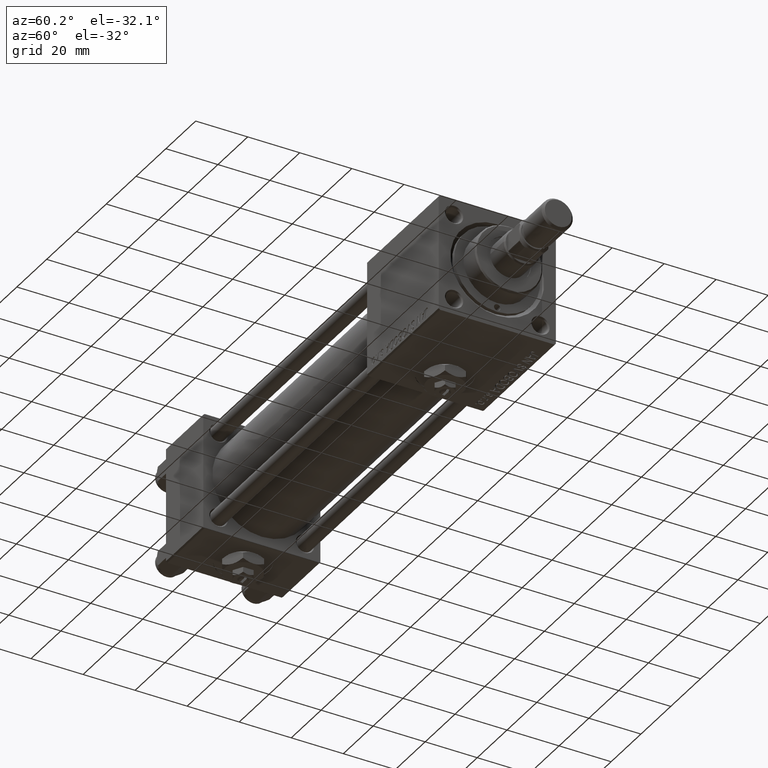
[diagram: clean part render]
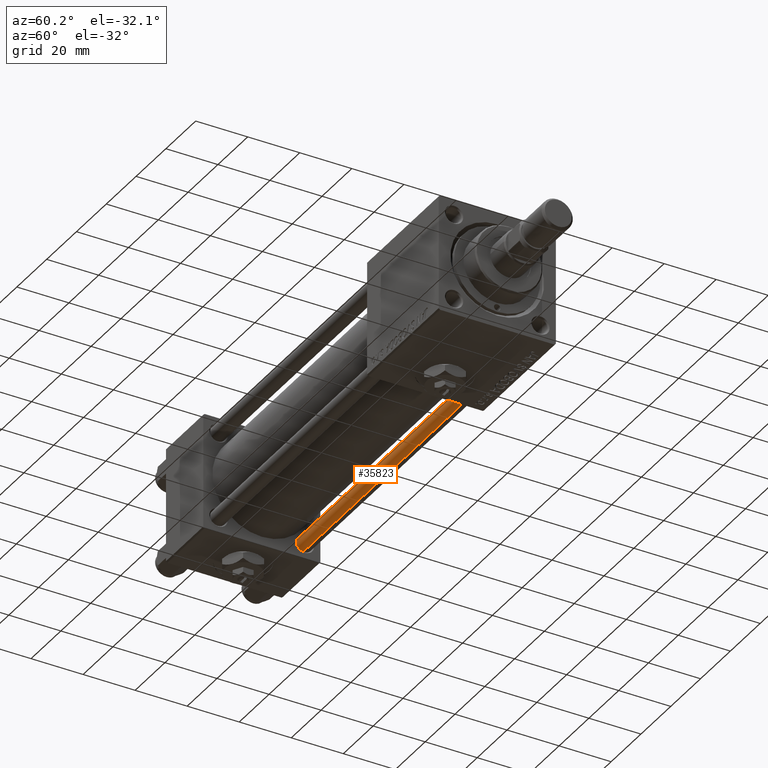
[diagram: same view with one face highlighted and labeled with its STEP entity id]
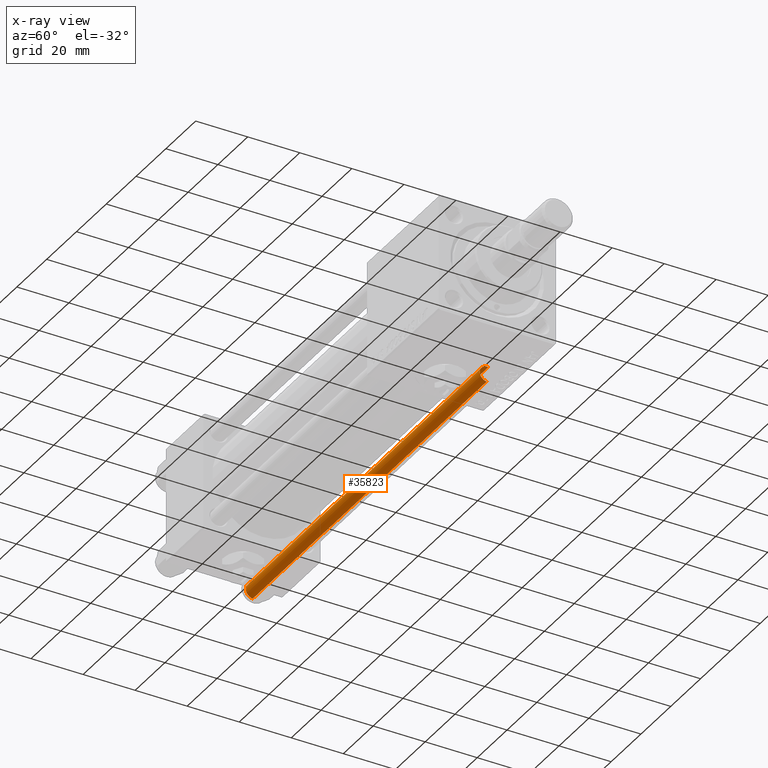
[diagram: x-ray of the same camera — body ghosted, the highlighted face saturated]
A machine part, auxiliary view. The second image highlights one B-rep face of the part: STEP entity #35823.
The next image is the same camera in x-ray: the body ghosted, the highlighted face saturated — about 0% of this face is hidden behind the body in this view.
In plain terms, the highlighted cylindrical surface (edge-blend (fillet) strip) has radius 3 mm, axis along (1, -0, 0).
Its self-contained STEP definition (entity closure, byte-faithful):
#1764 = LINE ( 'NONE', #18044, #7035 ) ;
#3276 = VECTOR ( 'NONE', #38239, 1000.000000000000000 ) ;
#3621 = AXIS2_PLACEMENT_3D ( 'NONE', #14482, #10732, #7513 ) ;
#5652 = CARTESIAN_POINT ( 'NONE',  ( 3.000000000000000444, 3.673940397442060361E-16, 158.0000000000000000 ) ) ;
#7035 = VECTOR ( 'NONE', #14580, 1000.000000000000000 ) ;
#7513 = DIRECTION ( 'NONE',  ( 1.000000000000000000, 0.000000000000000000, 0.000000000000000000 ) ) ;
#10732 = DIRECTION ( 'NONE',  ( -0.000000000000000000, -0.000000000000000000, 1.000000000000000000 ) ) ;
#12331 = FACE_OUTER_BOUND ( 'NONE', #41574, .T. ) ;
#14307 = EDGE_CURVE ( 'NONE', #28646, #35060, #43351, .T. ) ;
#14482 = CARTESIAN_POINT ( 'NONE',  ( 0.000000000000000000, 0.000000000000000000, 0.5000000000000281997 ) ) ;
#14580 = DIRECTION ( 'NONE',  ( -0.000000000000000000, -0.000000000000000000, -1.000000000000000000 ) ) ;
#14734 = LINE ( 'NONE', #5652, #3276 ) ;
#15705 = AXIS2_PLACEMENT_3D ( 'NONE', #32114, #24098, #48403 ) ;
#17132 = ORIENTED_EDGE ( 'NONE', *, *, #31811, .T. ) ;
#18044 = CARTESIAN_POINT ( 'NONE',  ( -3.000000000000000444, 0.000000000000000000, 158.0000000000000000 ) ) ;
#19207 = EDGE_CURVE ( 'NONE', #28646, #44332, #14734, .T. ) ;
#20460 = CARTESIAN_POINT ( 'NONE',  ( -3.000000000000000444, 0.000000000000000000, 0.5000000000000281997 ) ) ;
#22802 = ORIENTED_EDGE ( 'NONE', *, *, #19207, .F. ) ;
#23440 = DIRECTION ( 'NONE',  ( 0.000000000000000000, 0.000000000000000000, -1.000000000000000000 ) ) ;
#24098 = DIRECTION ( 'NONE',  ( -0.000000000000000000, -0.000000000000000000, -1.000000000000000000 ) ) ;
#28089 = CYLINDRICAL_SURFACE ( 'NONE', #15705, 3.000000000000000444 ) ;
#28646 = VERTEX_POINT ( 'NONE', #41109 ) ;
#31811 = EDGE_CURVE ( 'NONE', #49548, #44332, #49682, .T. ) ;
#32114 = CARTESIAN_POINT ( 'NONE',  ( 0.000000000000000000, 0.000000000000000000, 158.0000000000000000 ) ) ;
#32490 = CARTESIAN_POINT ( 'NONE',  ( 3.000000000000000444, 3.673940397442060361E-16, 0.5000000000000281997 ) ) ;
#32517 = EDGE_CURVE ( 'NONE', #35060, #49548, #1764, .T. ) ;
#35060 = VERTEX_POINT ( 'NONE', #49316 ) ;
#35823 = ADVANCED_FACE ( 'NONE', ( #12331 ), #28089, .T. ) ;
#36241 = DIRECTION ( 'NONE',  ( 1.000000000000000000, 0.000000000000000000, 0.000000000000000000 ) ) ;
#37360 = ORIENTED_EDGE ( 'NONE', *, *, #14307, .T. ) ;
#38239 = DIRECTION ( 'NONE',  ( -0.000000000000000000, -0.000000000000000000, -1.000000000000000000 ) ) ;
#39081 = AXIS2_PLACEMENT_3D ( 'NONE', #48523, #23440, #36241 ) ;
#41109 = CARTESIAN_POINT ( 'NONE',  ( 3.000000000000000444, 3.673940397442060361E-16, 157.5000000000000000 ) ) ;
#41574 = EDGE_LOOP ( 'NONE', ( #22802, #37360, #50053, #17132 ) ) ;
#43351 = CIRCLE ( 'NONE', #39081, 3.000000000000000444 ) ;
#44332 = VERTEX_POINT ( 'NONE', #32490 ) ;
#48403 = DIRECTION ( 'NONE',  ( -1.000000000000000000, 0.000000000000000000, 0.000000000000000000 ) ) ;
#48523 = CARTESIAN_POINT ( 'NONE',  ( 0.000000000000000000, 0.000000000000000000, 157.5000000000000000 ) ) ;
#49316 = CARTESIAN_POINT ( 'NONE',  ( -3.000000000000000444, 0.000000000000000000, 157.5000000000000000 ) ) ;
#49548 = VERTEX_POINT ( 'NONE', #20460 ) ;
#49682 = CIRCLE ( 'NONE', #3621, 3.000000000000000444 ) ;
#50053 = ORIENTED_EDGE ( 'NONE', *, *, #32517, .T. ) ;